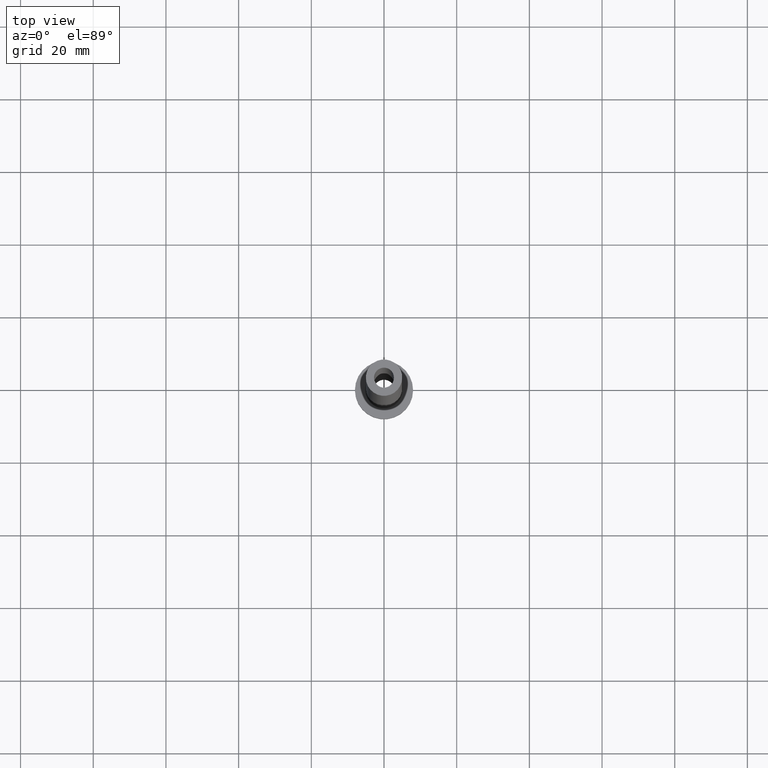
[diagram: clean part render]
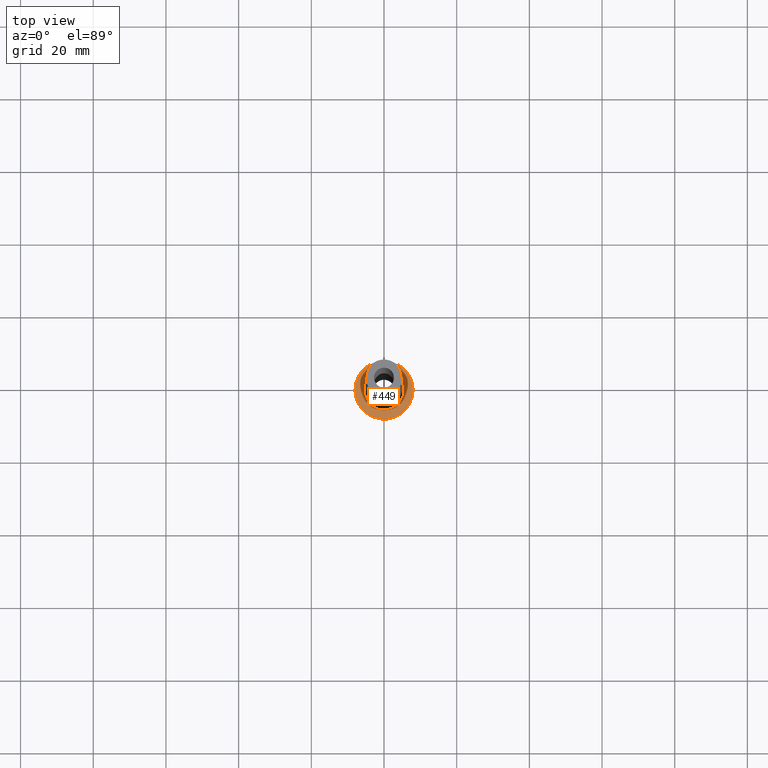
[diagram: same view with one face highlighted and labeled with its STEP entity id]
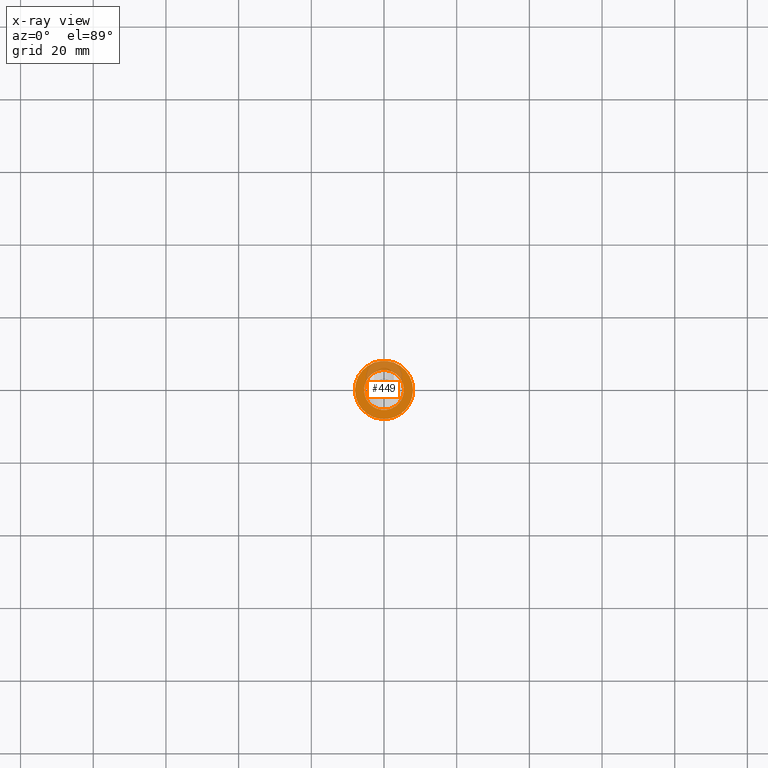
[diagram: x-ray of the same camera — body ghosted, the highlighted face saturated]
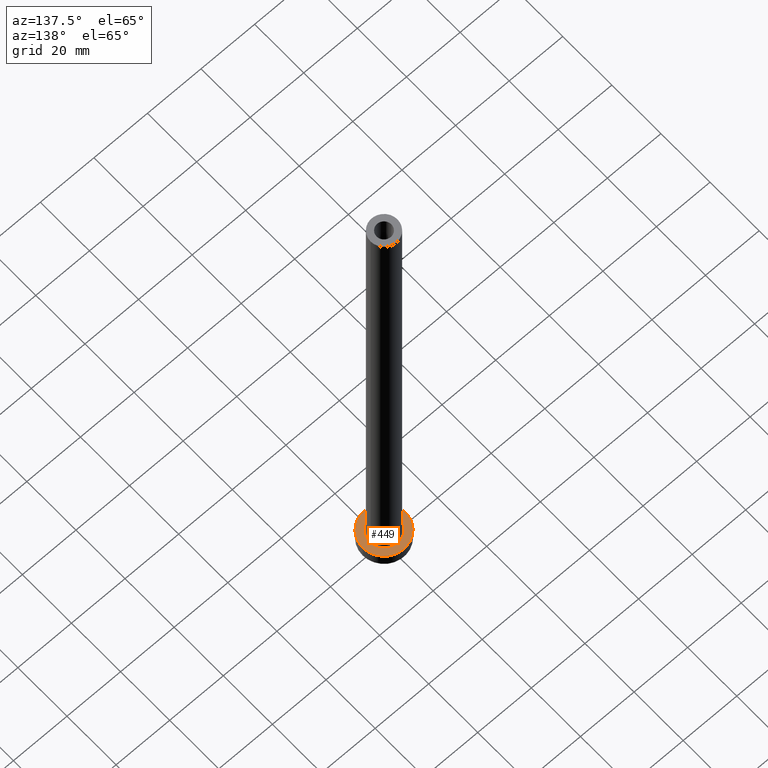
[diagram: same view with one face highlighted and labeled with its STEP entity id]
A machine part, top view. The second image highlights one B-rep face of the part: STEP entity #449.
The next image is the same camera in x-ray: the body ghosted, the highlighted face saturated — about 24% of this face is hidden behind the body in this view.
A second angle (auxiliary view) of the same face is appended — the face is thin or edge-on in the first view.
In plain terms, the highlighted planar face has unit normal (0, 0, 1).
Its self-contained STEP definition (entity closure, byte-faithful):
#4 = CARTESIAN_POINT ( 'NONE',  ( 8.000000000000000000, 9.797174393178825657E-16, 5.000000000000000000 ) ) ;
#13 = EDGE_CURVE ( 'NONE', #433, #295, #139, .T. ) ;
#23 = CARTESIAN_POINT ( 'NONE',  ( 0.000000000000000000, 0.000000000000000000, 5.000000000000000000 ) ) ;
#48 = CIRCLE ( 'NONE', #305, 5.500000000000000000 ) ;
#53 = DIRECTION ( 'NONE',  ( 0.000000000000000000, 0.000000000000000000, 1.000000000000000000 ) ) ;
#55 = CARTESIAN_POINT ( 'NONE',  ( 0.000000000000000000, 0.000000000000000000, 5.000000000000000000 ) ) ;
#71 = DIRECTION ( 'NONE',  ( 0.000000000000000000, 0.000000000000000000, 1.000000000000000000 ) ) ;
#96 = CARTESIAN_POINT ( 'NONE',  ( 0.000000000000000000, 0.000000000000000000, 5.000000000000000000 ) ) ;
#100 = EDGE_CURVE ( 'NONE', #276, #260, #152, .T. ) ;
#105 = CIRCLE ( 'NONE', #359, 8.000000000000000000 ) ;
#108 = PLANE ( 'NONE',  #195 ) ;
#136 = CARTESIAN_POINT ( 'NONE',  ( 0.000000000000000000, 0.000000000000000000, 5.000000000000000000 ) ) ;
#139 = CIRCLE ( 'NONE', #356, 8.000000000000000000 ) ;
#152 = CIRCLE ( 'NONE', #349, 5.500000000000000000 ) ;
#159 = ORIENTED_EDGE ( 'NONE', *, *, #394, .T. ) ;
#165 = DIRECTION ( 'NONE',  ( -0.000000000000000000, -0.000000000000000000, -1.000000000000000000 ) ) ;
#195 = AXIS2_PLACEMENT_3D ( 'NONE', #55, #71, #284 ) ;
#196 = DIRECTION ( 'NONE',  ( 1.000000000000000000, 0.000000000000000000, 0.000000000000000000 ) ) ;
#249 = CARTESIAN_POINT ( 'NONE',  ( 0.000000000000000000, 0.000000000000000000, 5.000000000000000000 ) ) ;
#251 = ORIENTED_EDGE ( 'NONE', *, *, #100, .T. ) ;
#260 = VERTEX_POINT ( 'NONE', #432 ) ;
#269 = DIRECTION ( 'NONE',  ( 0.000000000000000000, 0.000000000000000000, 1.000000000000000000 ) ) ;
#276 = VERTEX_POINT ( 'NONE', #351 ) ;
#278 = FACE_OUTER_BOUND ( 'NONE', #318, .T. ) ;
#284 = DIRECTION ( 'NONE',  ( 1.000000000000000000, 0.000000000000000000, -0.000000000000000000 ) ) ;
#295 = VERTEX_POINT ( 'NONE', #4 ) ;
#305 = AXIS2_PLACEMENT_3D ( 'NONE', #249, #391, #392 ) ;
#306 = DIRECTION ( 'NONE',  ( 1.000000000000000000, 0.000000000000000000, 0.000000000000000000 ) ) ;
#310 = EDGE_CURVE ( 'NONE', #260, #276, #48, .T. ) ;
#318 = EDGE_LOOP ( 'NONE', ( #367, #159 ) ) ;
#326 = ORIENTED_EDGE ( 'NONE', *, *, #310, .T. ) ;
#332 = EDGE_LOOP ( 'NONE', ( #251, #326 ) ) ;
#349 = AXIS2_PLACEMENT_3D ( 'NONE', #136, #165, #306 ) ;
#351 = CARTESIAN_POINT ( 'NONE',  ( 5.500000000000000000, 0.000000000000000000, 5.000000000000002665 ) ) ;
#356 = AXIS2_PLACEMENT_3D ( 'NONE', #23, #53, #196 ) ;
#359 = AXIS2_PLACEMENT_3D ( 'NONE', #96, #269, #377 ) ;
#367 = ORIENTED_EDGE ( 'NONE', *, *, #13, .T. ) ;
#377 = DIRECTION ( 'NONE',  ( 1.000000000000000000, 0.000000000000000000, 0.000000000000000000 ) ) ;
#391 = DIRECTION ( 'NONE',  ( -0.000000000000000000, -0.000000000000000000, -1.000000000000000000 ) ) ;
#392 = DIRECTION ( 'NONE',  ( 1.000000000000000000, 0.000000000000000000, 0.000000000000000000 ) ) ;
#394 = EDGE_CURVE ( 'NONE', #295, #433, #105, .T. ) ;
#426 = CARTESIAN_POINT ( 'NONE',  ( -8.000000000000000000, 0.000000000000000000, 5.000000000000000000 ) ) ;
#432 = CARTESIAN_POINT ( 'NONE',  ( -5.500000000000000000, 6.735557395310442023E-16, 5.000000000000002665 ) ) ;
#433 = VERTEX_POINT ( 'NONE', #426 ) ;
#449 = ADVANCED_FACE ( 'NONE', ( #456, #278 ), #108, .T. ) ;
#456 = FACE_BOUND ( 'NONE', #332, .T. ) ;